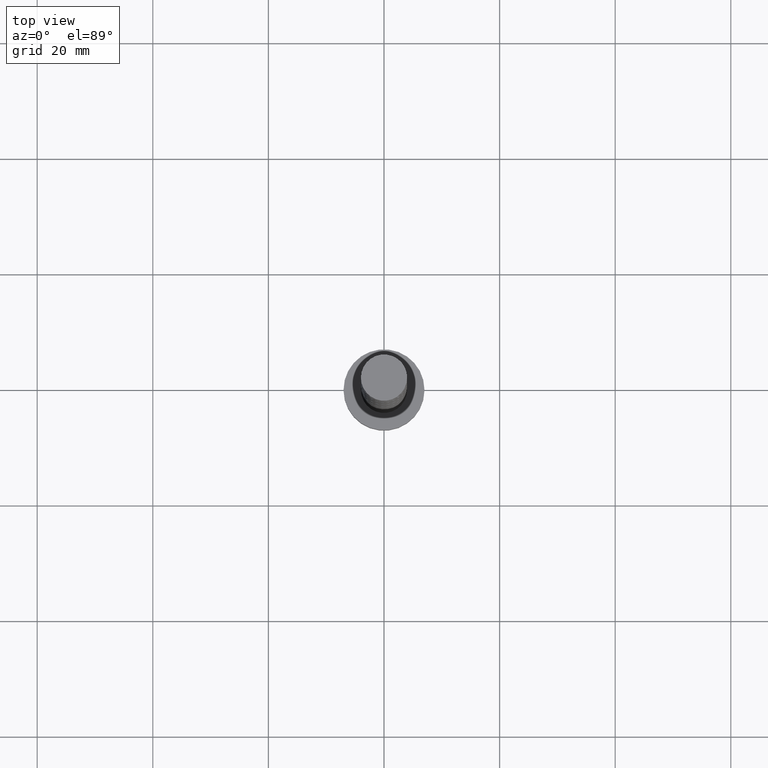
[diagram: clean part render]
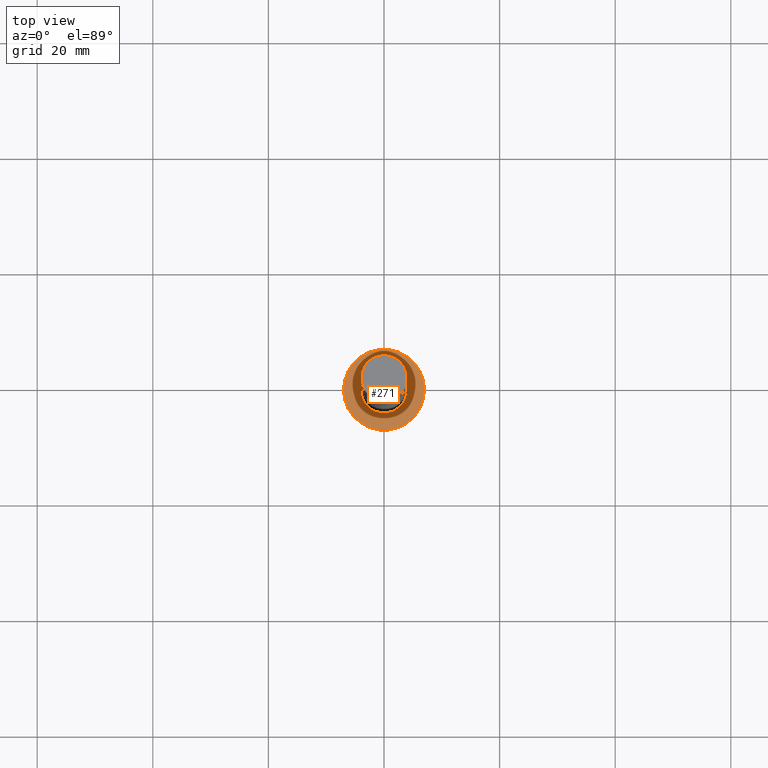
[diagram: same view with one face highlighted and labeled with its STEP entity id]
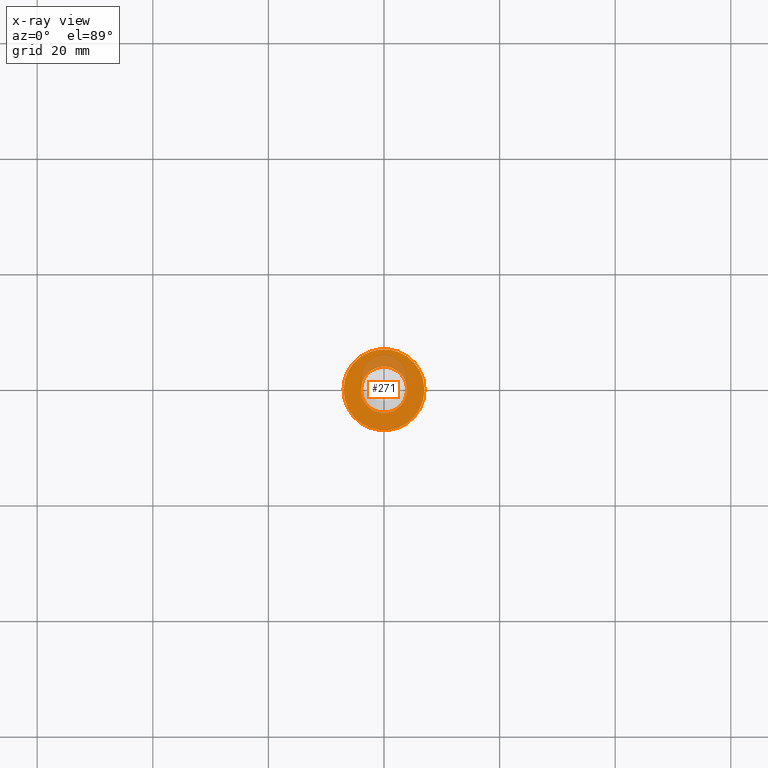
[diagram: x-ray of the same camera — body ghosted, the highlighted face saturated]
A machine part, top view. The second image highlights one B-rep face of the part: STEP entity #271.
The next image is the same camera in x-ray: the body ghosted, the highlighted face saturated — about 16% of this face is hidden behind the body in this view.
In plain terms, the highlighted planar face has unit normal (0, 0, 1).
Its self-contained STEP definition (entity closure, byte-faithful):
#3 = CIRCLE ( 'NONE', #1175, 7.000000000000000000 ) ;
#92 = EDGE_CURVE ( 'NONE', #914, #967, #603, .T. ) ;
#95 = ORIENTED_EDGE ( 'NONE', *, *, #415, .F. ) ;
#107 = CIRCLE ( 'NONE', #244, 4.000000000000000000 ) ;
#181 = CARTESIAN_POINT ( 'NONE',  ( -4.000000000000000000, 0.000000000000000000, 5.000000000000000000 ) ) ;
#186 = DIRECTION ( 'NONE',  ( 0.000000000000000000, 0.000000000000000000, 1.000000000000000000 ) ) ;
#213 = PLANE ( 'NONE',  #1569 ) ;
#239 = DIRECTION ( 'NONE',  ( 0.000000000000000000, 0.000000000000000000, 1.000000000000000000 ) ) ;
#244 = AXIS2_PLACEMENT_3D ( 'NONE', #1008, #269, #775 ) ;
#269 = DIRECTION ( 'NONE',  ( 0.000000000000000000, 0.000000000000000000, 1.000000000000000000 ) ) ;
#271 = ADVANCED_FACE ( 'NONE', ( #472, #441 ), #213, .T. ) ;
#357 = ORIENTED_EDGE ( 'NONE', *, *, #92, .T. ) ;
#367 = CARTESIAN_POINT ( 'NONE',  ( -7.000000000000000000, 0.000000000000000000, 5.000000000000000000 ) ) ;
#396 = ORIENTED_EDGE ( 'NONE', *, *, #1377, .F. ) ;
#410 = CARTESIAN_POINT ( 'NONE',  ( 7.000000000000000000, 8.572527594031473190E-16, 5.000000000000000000 ) ) ;
#415 = EDGE_CURVE ( 'NONE', #1029, #1573, #1553, .T. ) ;
#441 = FACE_OUTER_BOUND ( 'NONE', #522, .T. ) ;
#472 = FACE_BOUND ( 'NONE', #1513, .T. ) ;
#496 = DIRECTION ( 'NONE',  ( 1.000000000000000000, 0.000000000000000000, 0.000000000000000000 ) ) ;
#522 = EDGE_LOOP ( 'NONE', ( #1445, #357 ) ) ;
#585 = DIRECTION ( 'NONE',  ( 0.000000000000000000, 0.000000000000000000, 1.000000000000000000 ) ) ;
#603 = CIRCLE ( 'NONE', #1266, 7.000000000000000000 ) ;
#615 = AXIS2_PLACEMENT_3D ( 'NONE', #1431, #585, #948 ) ;
#621 = CARTESIAN_POINT ( 'NONE',  ( 0.000000000000000000, 0.000000000000000000, 5.000000000000000000 ) ) ;
#623 = EDGE_CURVE ( 'NONE', #967, #914, #3, .T. ) ;
#685 = DIRECTION ( 'NONE',  ( 1.000000000000000000, 0.000000000000000000, -0.000000000000000000 ) ) ;
#775 = DIRECTION ( 'NONE',  ( 1.000000000000000000, 0.000000000000000000, 0.000000000000000000 ) ) ;
#914 = VERTEX_POINT ( 'NONE', #410 ) ;
#948 = DIRECTION ( 'NONE',  ( 1.000000000000000000, 0.000000000000000000, 0.000000000000000000 ) ) ;
#967 = VERTEX_POINT ( 'NONE', #367 ) ;
#1008 = CARTESIAN_POINT ( 'NONE',  ( 0.000000000000000000, 0.000000000000000000, 5.000000000000000000 ) ) ;
#1027 = DIRECTION ( 'NONE',  ( 0.000000000000000000, 0.000000000000000000, 1.000000000000000000 ) ) ;
#1029 = VERTEX_POINT ( 'NONE', #1424 ) ;
#1175 = AXIS2_PLACEMENT_3D ( 'NONE', #621, #1027, #496 ) ;
#1181 = DIRECTION ( 'NONE',  ( 1.000000000000000000, 0.000000000000000000, 0.000000000000000000 ) ) ;
#1266 = AXIS2_PLACEMENT_3D ( 'NONE', #1403, #186, #1181 ) ;
#1377 = EDGE_CURVE ( 'NONE', #1573, #1029, #107, .T. ) ;
#1403 = CARTESIAN_POINT ( 'NONE',  ( 0.000000000000000000, 0.000000000000000000, 5.000000000000000000 ) ) ;
#1424 = CARTESIAN_POINT ( 'NONE',  ( 4.000000000000000000, 4.898587196589412829E-16, 5.000000000000000000 ) ) ;
#1431 = CARTESIAN_POINT ( 'NONE',  ( 0.000000000000000000, 0.000000000000000000, 5.000000000000000000 ) ) ;
#1445 = ORIENTED_EDGE ( 'NONE', *, *, #623, .T. ) ;
#1513 = EDGE_LOOP ( 'NONE', ( #396, #95 ) ) ;
#1547 = CARTESIAN_POINT ( 'NONE',  ( 0.000000000000000000, 0.000000000000000000, 5.000000000000000000 ) ) ;
#1553 = CIRCLE ( 'NONE', #615, 4.000000000000000000 ) ;
#1569 = AXIS2_PLACEMENT_3D ( 'NONE', #1547, #239, #685 ) ;
#1573 = VERTEX_POINT ( 'NONE', #181 ) ;